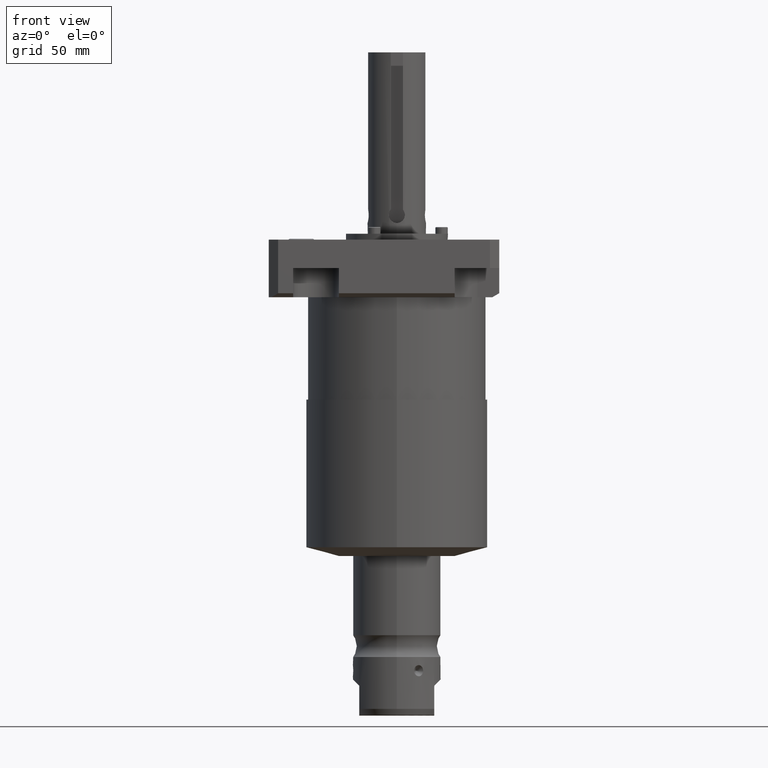
[diagram: clean part render]
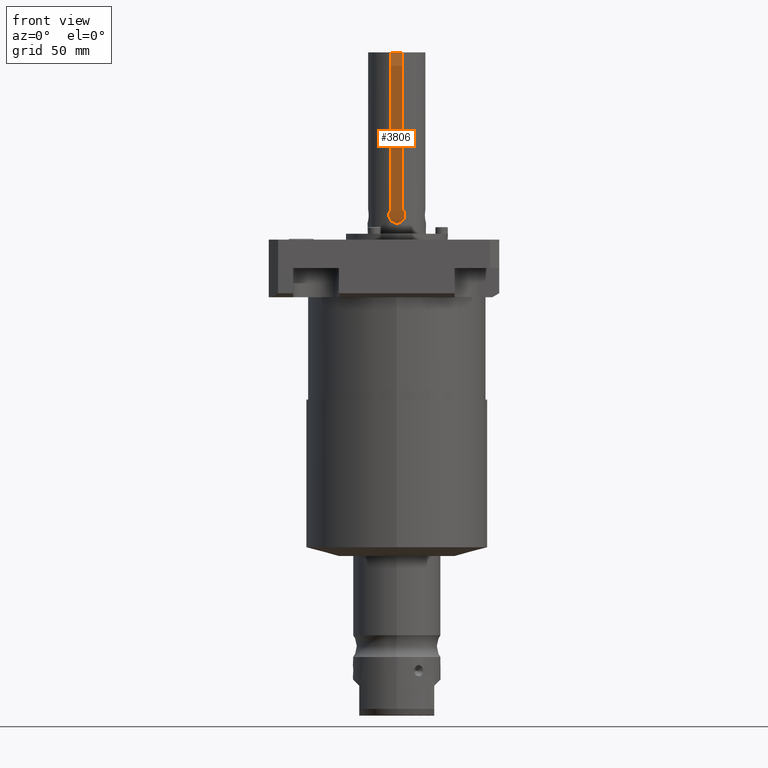
[diagram: same view with one face highlighted and labeled with its STEP entity id]
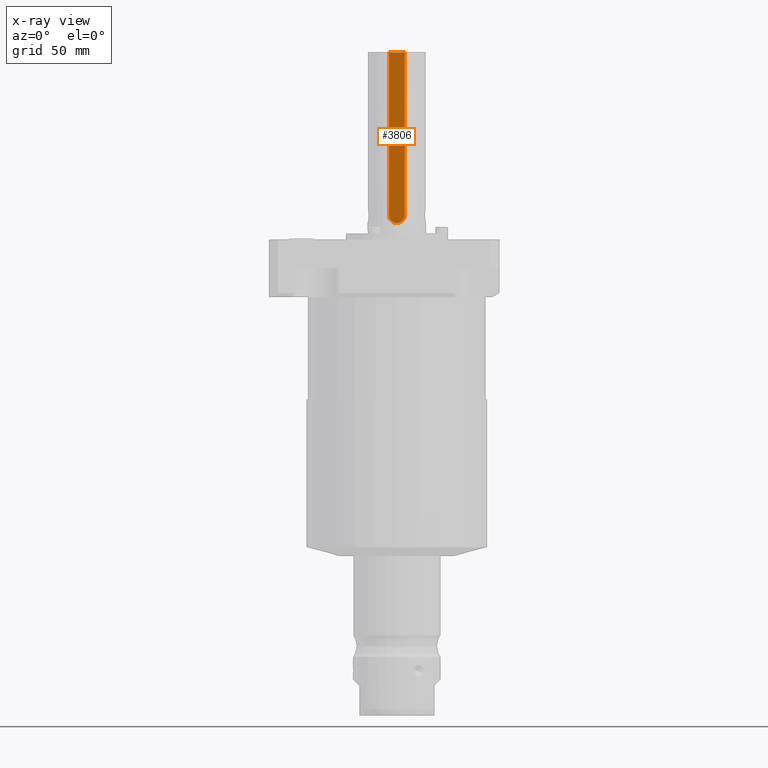
[diagram: x-ray of the same camera — body ghosted, the highlighted face saturated]
A machine part, front view. The second image highlights one B-rep face of the part: STEP entity #3806.
The next image is the same camera in x-ray: the body ghosted, the highlighted face saturated — about 0% of this face is hidden behind the body in this view.
In plain terms, the highlighted planar face has unit normal (0, -1, 0).
Its self-contained STEP definition (entity closure, byte-faithful):
#501=DIRECTION('',(1.E0,0.E0,0.E0));
#502=VECTOR('',#501,6.985E0);
#503=CARTESIAN_POINT('',(-3.4925E0,-6.223E0,1.06299E2));
#504=LINE('',#503,#502);
#505=DIRECTION('',(0.E0,0.E0,1.E0));
#506=VECTOR('',#505,7.0612E1);
#507=CARTESIAN_POINT('',(3.4925E0,-6.223E0,3.5687E1));
#508=LINE('',#507,#506);
#509=CARTESIAN_POINT('',(0.E0,-6.223E0,3.5687E1));
#510=DIRECTION('',(0.E0,-1.E0,0.E0));
#511=DIRECTION('',(-1.E0,0.E0,0.E0));
#512=AXIS2_PLACEMENT_3D('',#509,#510,#511);
#514=DIRECTION('',(0.E0,0.E0,-1.E0));
#515=VECTOR('',#514,7.0612E1);
#516=CARTESIAN_POINT('',(-3.4925E0,-6.223E0,1.06299E2));
#517=LINE('',#516,#515);
#3065=CARTESIAN_POINT('',(-3.4925E0,-6.223E0,1.06299E2));
#3066=CARTESIAN_POINT('',(-3.4925E0,-6.223E0,3.5687E1));
#3067=VERTEX_POINT('',#3065);
#3068=VERTEX_POINT('',#3066);
#3069=CARTESIAN_POINT('',(3.4925E0,-6.223E0,3.5687E1));
#3070=CARTESIAN_POINT('',(3.4925E0,-6.223E0,1.06299E2));
#3071=VERTEX_POINT('',#3069);
#3072=VERTEX_POINT('',#3070);
#3793=CARTESIAN_POINT('',(0.E0,-6.223E0,1.06299E2));
#3794=DIRECTION('',(0.E0,-1.E0,0.E0));
#3795=DIRECTION('',(-1.E0,0.E0,0.E0));
#3796=AXIS2_PLACEMENT_3D('',#3793,#3794,#3795);
#3797=PLANE('',#3796);
#3798=ORIENTED_EDGE('',*,*,#3372,.T.);
#3800=ORIENTED_EDGE('',*,*,#3799,.F.);
#3802=ORIENTED_EDGE('',*,*,#3801,.F.);
#3803=ORIENTED_EDGE('',*,*,#3784,.F.);
#3804=EDGE_LOOP('',(#3798,#3800,#3802,#3803));
#3805=FACE_OUTER_BOUND('',#3804,.F.);
#513=CIRCLE('',#512,3.4925E0);
#3372=EDGE_CURVE('',#3067,#3072,#504,.T.);
#3784=EDGE_CURVE('',#3067,#3068,#517,.T.);
#3799=EDGE_CURVE('',#3071,#3072,#508,.T.);
#3801=EDGE_CURVE('',#3068,#3071,#513,.T.);
#3806=ADVANCED_FACE('',(#3805),#3797,.T.);